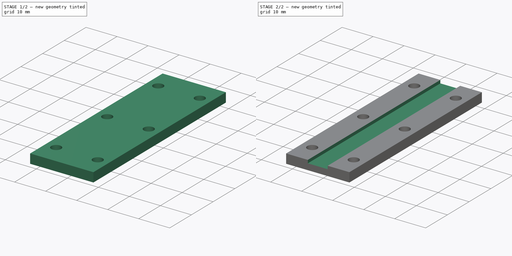
[diagram: build sequence overview — one tinted view per stage of 2, left to right]
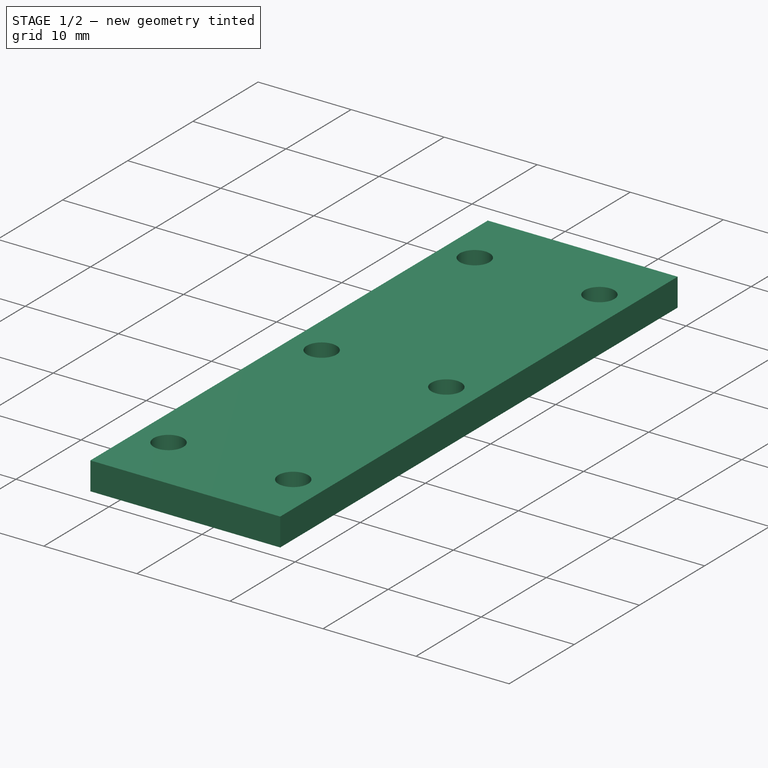
[diagram: stage 1 of 2 — iso view after this stage's code; geometry added in this stage tinted green]
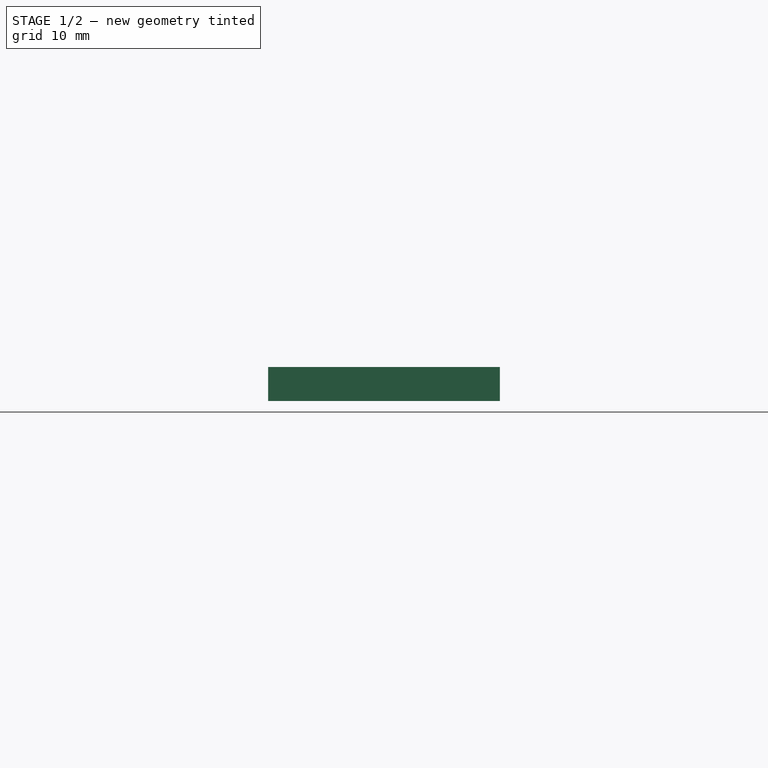
[diagram: stage 1 of 2 — front view after this stage's code; geometry added in this stage tinted green]
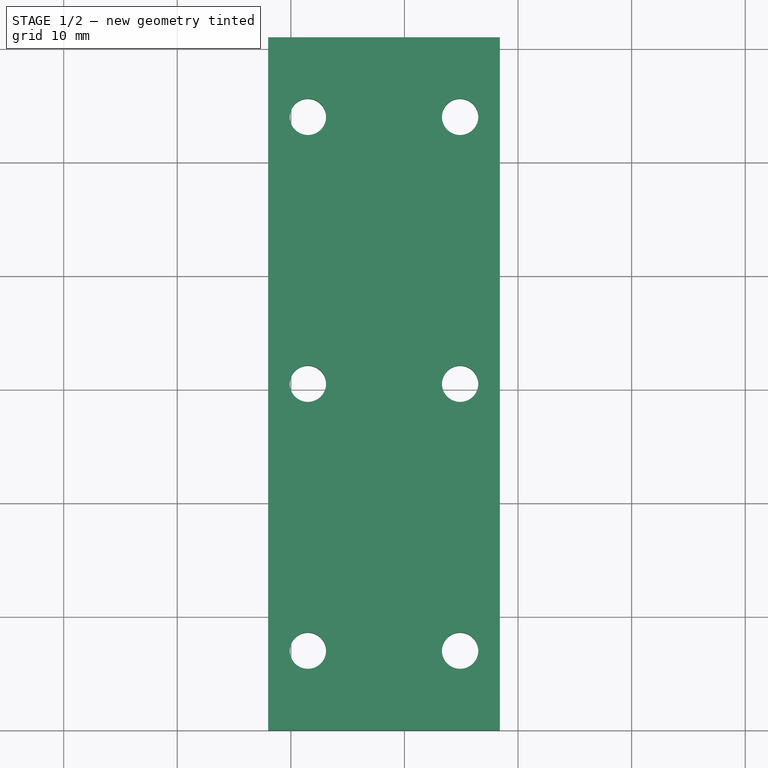
[diagram: stage 1 of 2 — top view after this stage's code; geometry added in this stage tinted green]
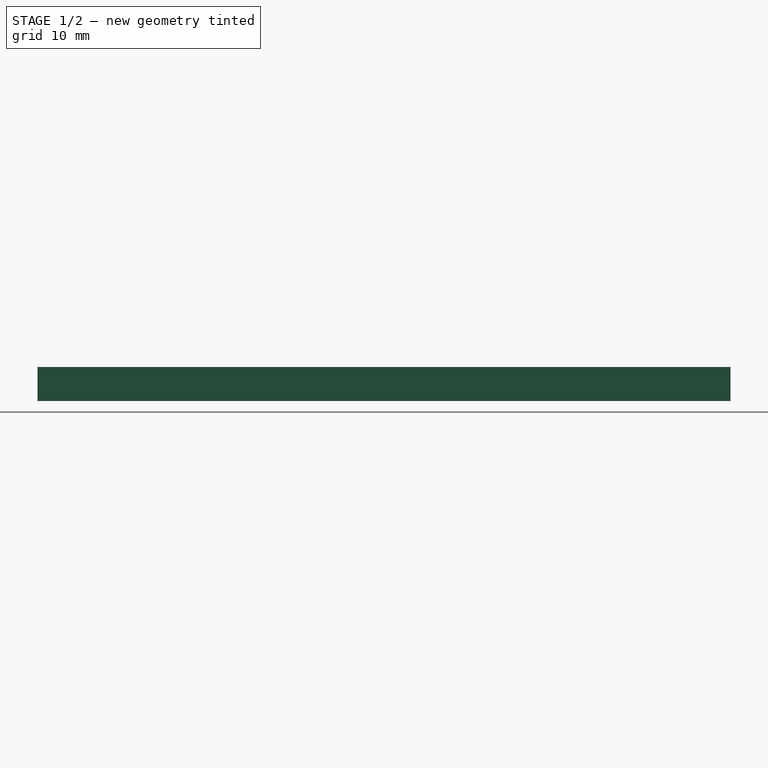
[diagram: stage 1 of 2 — right view after this stage's code; geometry added in this stage tinted green]
FCSTD DOCUMENT  (FreeCAD 0.19R24276 (Git))
Label: Gt2_belt_holder_for_glass_movement_cover
License: All rights reserved
LicenseURL: http://en.wikipedia.org/wiki/All_rights_reserved
objects: Sketcher::SketchObject×2, PartDesign::Pad×1, PartDesign::Pocket×1, PartDesign::Body×1
note: 7 computed .brp shape members not serialized (recipe doc carries the construction recipe); baked Part::Feature solids carry a one-line shape summary decoded from their .brp

FEATURE [Sketcher::SketchObject] Sketch
  FullyConstrained = false
  MapMode = 5
  Support = -> [XY_Plane]
  sketch-geometry (39):
    g0: LineSegment StartX=0 StartY=0 StartZ=0 EndX=15 EndY=0 EndZ=0
    g1: LineSegment StartX=15 StartY=0 StartZ=0 EndX=15 EndY=60 EndZ=0
    g2: LineSegment StartX=15 StartY=60 StartZ=0 EndX=0 EndY=60 EndZ=0
    g3: LineSegment StartX=0 StartY=60 StartZ=0 EndX=0 EndY=0 EndZ=0
    g4: LineSegment StartX=10 StartY=0 StartZ=0 EndX=10 EndY=60 EndZ=0
    g5: Circle CenterX=10 CenterY=46 CenterZ=0 NormalX=0 NormalY=0 NormalZ=1 AngleXU=0 Radius=2.5
    g6: Circle CenterX=10 CenterY=26 CenterZ=0 NormalX=0 NormalY=0 NormalZ=1 AngleXU=0 Radius=2.5
    g7: Circle CenterX=10 CenterY=6 CenterZ=0 NormalX=0 NormalY=0 NormalZ=1 AngleXU=0 Radius=2.5
    g8: LineSegment StartX=0 StartY=0 StartZ=0 EndX=38.4 EndY=0 EndZ=0
    g9: LineSegment StartX=38.4 StartY=0 StartZ=0 EndX=38.4 EndY=61 EndZ=0
    g10: LineSegment StartX=38.4 StartY=61 StartZ=0 EndX=0 EndY=61 EndZ=0
    g11: LineSegment StartX=0 StartY=61 StartZ=0 EndX=0 EndY=0 EndZ=0
    g12: LineSegment StartX=25 StartY=61 StartZ=0 EndX=25 EndY=0 EndZ=0
    g13: LineSegment StartX=31.4 StartY=61 StartZ=0 EndX=31.4 EndY=0 EndZ=0
    g14: LineSegment StartX=21.5 StartY=54 StartZ=0 EndX=34.9 EndY=54 EndZ=0
    g15: LineSegment StartX=53.2266 StartY=54 StartZ=0 EndX=53.2266 EndY=7 EndZ=0
    g16: LineSegment StartX=53.2266 StartY=7 StartZ=0 EndX=38.4 EndY=7 EndZ=0
    g17: LineSegment StartX=18 StartY=0 StartZ=0 EndX=18 EndY=61 EndZ=0
    g18: LineSegment StartX=19.0739 StartY=30.5 StartZ=0 EndX=38.4 EndY=30.5 EndZ=0
    g19: LineSegment StartX=16.2806 StartY=30.5 StartZ=0 EndX=53.2266 EndY=30.5 EndZ=0
    g20: LineSegment StartX=38.4 StartY=54 StartZ=0 EndX=53.2266 EndY=54 EndZ=0
    g21: LineSegment StartX=34.9 StartY=7 StartZ=0 EndX=21.5 EndY=7 EndZ=0
    g22: Circle CenterX=21.5 CenterY=54 CenterZ=0 NormalX=0 NormalY=0 NormalZ=1 AngleXU=0 Radius=1.6
    g23: Circle CenterX=34.9 CenterY=54 CenterZ=0 NormalX=0 NormalY=0 NormalZ=1 AngleXU=0 Radius=0
    g24: Circle CenterX=21.5 CenterY=7 CenterZ=0 NormalX=0 NormalY=0 NormalZ=1 AngleXU=0 Radius=1.6
    g25: Circle CenterX=34.9 CenterY=7 CenterZ=0 NormalX=0 NormalY=0 NormalZ=1 AngleXU=0 Radius=1.6
    g26: Circle CenterX=34.9 CenterY=54 CenterZ=0 NormalX=0 NormalY=0 NormalZ=1 AngleXU=0 Radius=1.6
    g27: Circle CenterX=34.9 CenterY=30.5 CenterZ=0 NormalX=0 NormalY=0 NormalZ=1 AngleXU=0 Radius=1.6
    g28: LineSegment StartX=34.9 StartY=7 StartZ=0 EndX=34.9 EndY=30.5 EndZ=0
    g29: LineSegment StartX=21.5 StartY=7 StartZ=0 EndX=21.5 EndY=30.5 EndZ=0
    g30: Circle CenterX=21.5 CenterY=30.5 CenterZ=0 NormalX=0 NormalY=0 NormalZ=1 AngleXU=0 Radius=1.6
    g31: LineSegment StartX=0 StartY=0 StartZ=0 EndX=38.4 EndY=0 EndZ=0
    g32: LineSegment StartX=38.4 StartY=0 StartZ=0 EndX=38.4 EndY=61 EndZ=0
    g33: LineSegment StartX=38.4 StartY=61 StartZ=0 EndX=0 EndY=61 EndZ=0
    g34: LineSegment StartX=0 StartY=61 StartZ=0 EndX=0 EndY=0 EndZ=0
    g35: LineSegment StartX=10 StartY=46 StartZ=0 EndX=-18.6831 EndY=46 EndZ=0
    g36: LineSegment StartX=15.571 StartY=69.4699 StartZ=0 EndX=15.571 EndY=-7.97656 EndZ=0
    g37: LineSegment StartX=18 StartY=0 StartZ=0 EndX=38.4 EndY=0 EndZ=0
    g38: LineSegment StartX=18 StartY=61 StartZ=0 EndX=38.4 EndY=61 EndZ=0
  constraints (98):
    c: Coincident(g0,g1)
    c: Coincident(g1,g2)
    c: Coincident(g2,g3)
    c: Coincident(g3,g0)
    c: Horizontal(g0)
    c: Horizontal(g2)
    c: Vertical(g1)
    c: Vertical(g3)
    c: Coincident(g0,g-1)
    c: Vertical(g4)
    c: DistanceX(g0,g0) = 15
    c: PointOnObject(g4,g0)
    c: PointOnObject(g4,g2)
    c: DistanceX(g2,g4) = 10
    c: PointOnObject(g5,g4)
    c: PointOnObject(g6,g4)
    c: PointOnObject(g7,g4)
    c: Diameter(g6) = 5
    c: Equal(g6,g7)
    c: Equal(g6,g5)
    c: DistanceY(g0,g7) = 6
    c: DistanceY(g7,g6) = 20
    c: DistanceY(g6,g5) = 20
    c: DistanceY(g-1,g2) = 60
    c: Coincident(g8,g9)
    c: Coincident(g9,g10)
    c: Coincident(g10,g11)
    c: Coincident(g11,g8)
    c: Horizontal(g8)
    c: Horizontal(g10)
    c: Vertical(g9)
    c: Vertical(g11)
    c: Coincident(g8,g-1)
    c: Vertical(g12)
    c: Vertical(g13)
    c: PointOnObject(g12,g8)
    c: PointOnObject(g13,g8)
    c: PointOnObject(g12,g10)
    c: PointOnObject(g13,g10)
    c: DistanceX(g12,g13) = 6.4
    c: DistanceX(g0,g12) = 10
    c: DistanceX(g13,g8) = 7
    c: Coincident(g20,g15)
    c: Coincident(g15,g16)
    c: Horizontal(g14)
    c: Horizontal(g16)
    c: Vertical(g15)
    c: Vertical(g17)
    c: Horizontal(g18)
    c: Symmetric(g9,g8,g18)
    c: Horizontal(g19)
    c: Symmetric(g20,g15,g19)
    c: DistanceY(g18,g19) = 0
    c: DistanceY(g8,g15) = 7
    c: PointOnObject(g20,g9)
    c: Tangent(g14,g20)
    c: PointOnObject(g16,g9)
    c: Tangent(g16,g21)
    c: DistanceY(g15,g15) = 47
    c: Coincident(g22,g14)
    c: Coincident(g23,g14)
    c: Coincident(g24,g21)
    c: Coincident(g25,g21)
    c: Coincident(g26,g14)
    c: Coincident(g28,g21)
    c: Vertical(g28)
    c: PointOnObject(g28,g18)
    c: Coincident(g28,g27)
    c: Coincident(g29,g21)
    c: Vertical(g29)
    c: PointOnObject(g29,g18)
    c: Coincident(g30,g29)
    c: Radius(g26) = 1.6
    c: Equal(g26,g30)
    c: Equal(g26,g22)
    c: Equal(g26,g27)
    c: Equal(g26,g25)
    c: Equal(g26,g24)
    c: Coincident(g31,g-1)
    c: Coincident(g32,g31)
    c: Coincident(g32,g9)
    c: Coincident(g33,g32)
    c: Coincident(g33,g10)
    c: Coincident(g34,g33)
    c: Coincident(g34,g31)
    c: Coincident(g35,g5)
    c: Horizontal(g35)
    c: Vertical(g36)
    c: DistanceX(g13,g25) = 3.5
    c: DistanceX(g24,g12) = 3.5
    c: DistanceX(g17,g12) = 7
    c: PointOnObject(g17,g31)
    c: PointOnObject(g17,g33)
    c: Coincident(g37,g17)
    c: Coincident(g37,g32)
    c: Horizontal(g37)
    c: Coincident(g38,g17)
    c: Coincident(g38,g32)
FEATURE [PartDesign::Pad] Pad
  Direction = (1,1,1)
  Length = 3
  Length2 = 100
  Profile = -> Sketch
  Type = 0
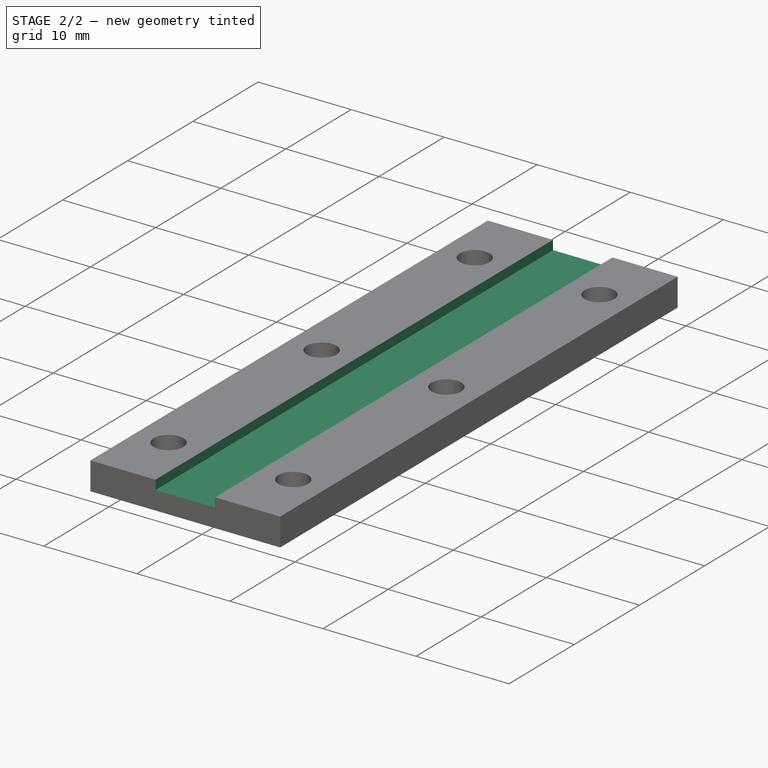
[diagram: stage 2 of 2 — iso view after this stage's code; geometry added in this stage tinted green]
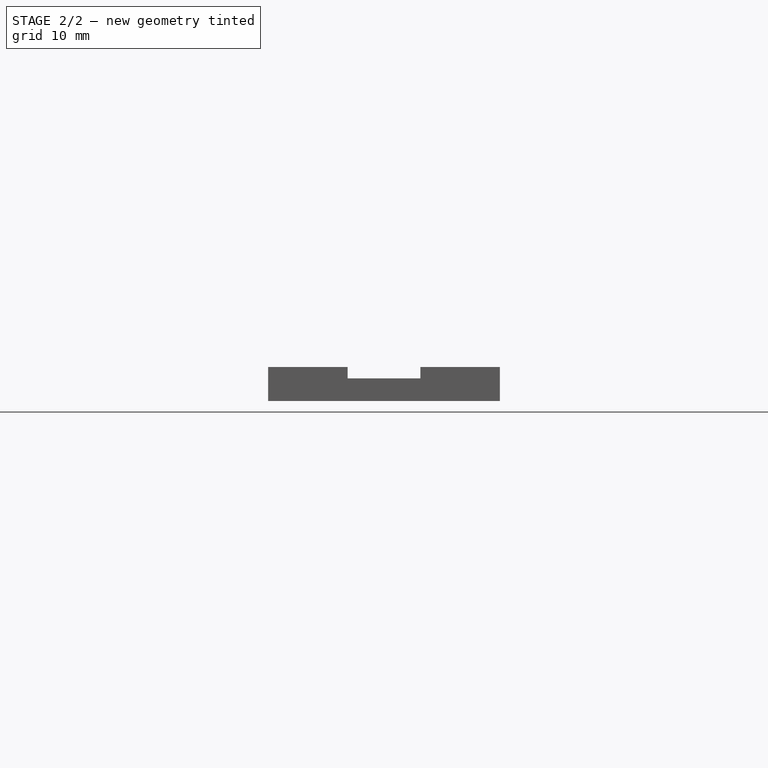
[diagram: stage 2 of 2 — front view after this stage's code; geometry added in this stage tinted green]
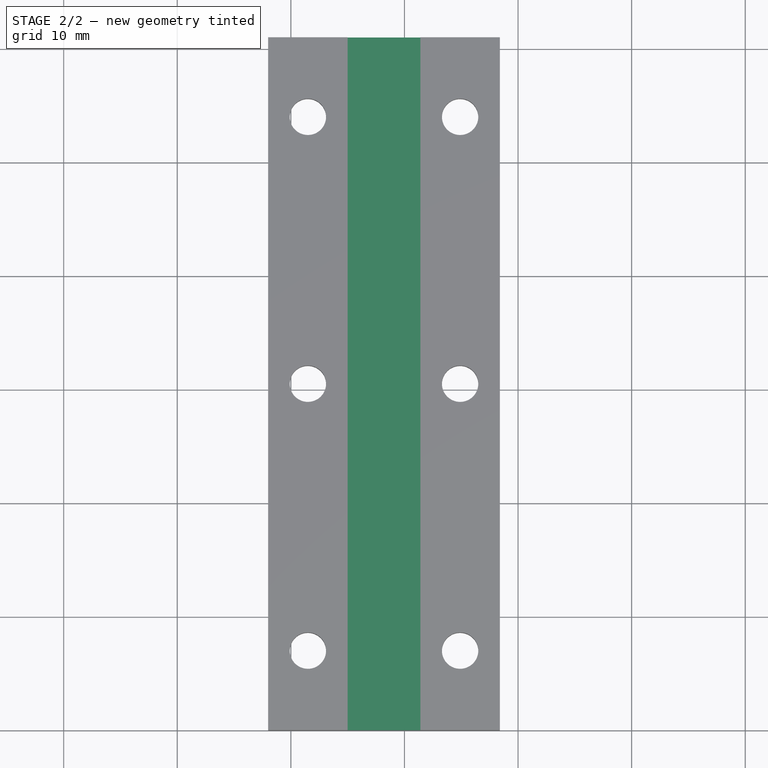
[diagram: stage 2 of 2 — top view after this stage's code; geometry added in this stage tinted green]
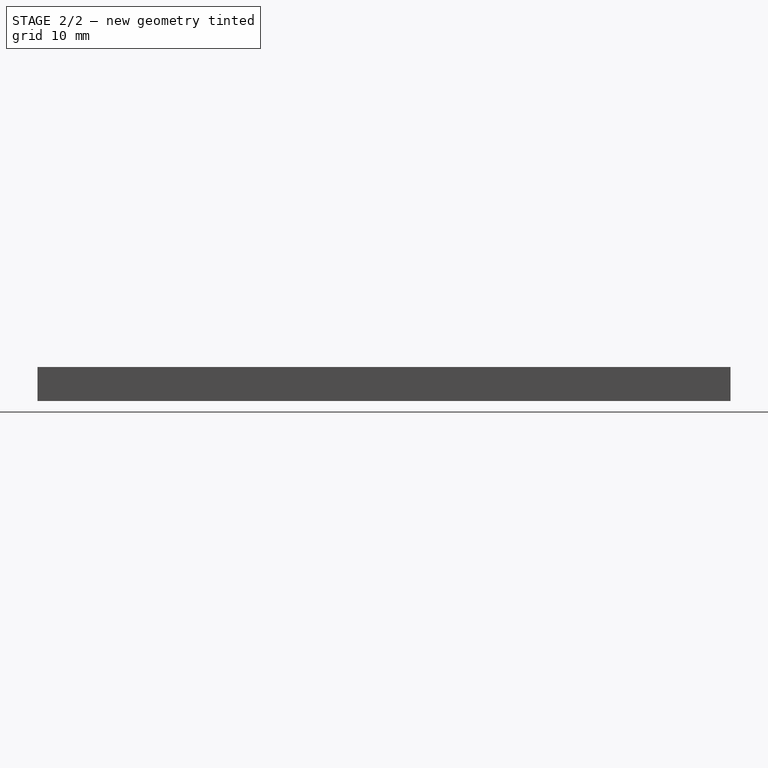
[diagram: stage 2 of 2 — right view after this stage's code; geometry added in this stage tinted green]
FEATURE [Sketcher::SketchObject] Sketch001
  FullyConstrained = false
  MapMode = 5
  Placement = pos=(0,0,3) rot=(0,0,1;0rad)
  Support = -> [Pad]
  sketch-geometry (4):
    g0: LineSegment StartX=25 StartY=79.5274 StartZ=0 EndX=31.4 EndY=79.5274 EndZ=0
    g1: LineSegment StartX=31.4 StartY=79.5274 StartZ=0 EndX=31.4 EndY=-9.79713 EndZ=0
    g2: LineSegment StartX=31.4 StartY=-9.79713 StartZ=0 EndX=25 EndY=-9.79713 EndZ=0
    g3: LineSegment StartX=25 StartY=-9.79713 StartZ=0 EndX=25 EndY=79.5274 EndZ=0
  constraints (10):
    c: Coincident(g0,g1)
    c: Coincident(g1,g2)
    c: Coincident(g2,g3)
    c: Coincident(g3,g0)
    c: Horizontal(g0)
    c: Horizontal(g2)
    c: Vertical(g1)
    c: Vertical(g3)
    c: DistanceX(g-1,g2) = 25
    c: DistanceX(g2,g2) = 6.4
FEATURE [PartDesign::Pocket] Pocket
  BaseFeature = -> Pad
  Length = 1
  Length2 = 100
  Profile = -> Sketch001
  Type = 0
FEATURE [PartDesign::Body] Body
  Group = -> [Sketch,Pad,Sketch001,Pocket]
  Origin = -> Origin
  Tip = -> Pocket
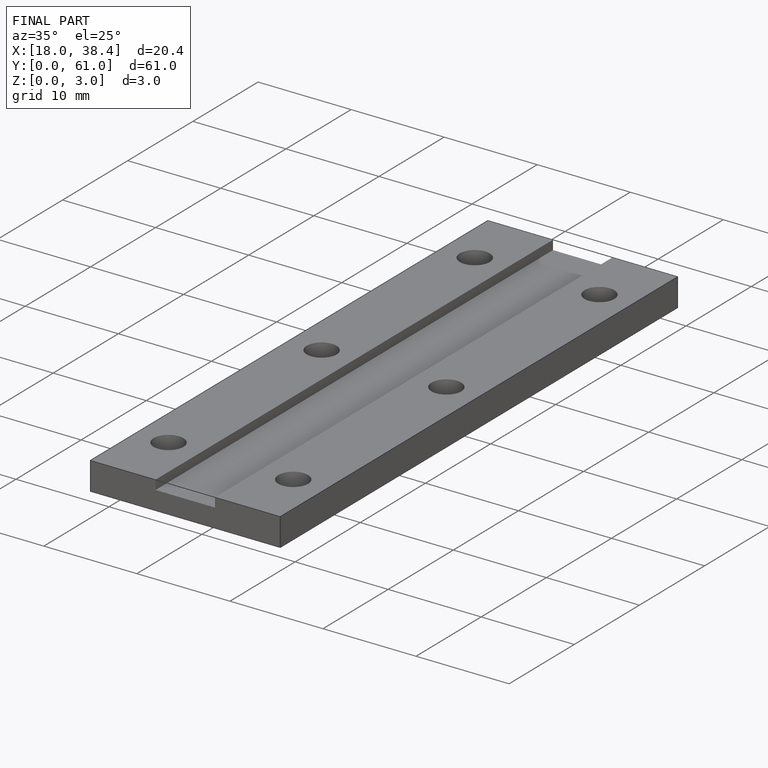
[diagram: finished part — iso view with bounding-box wireframe]
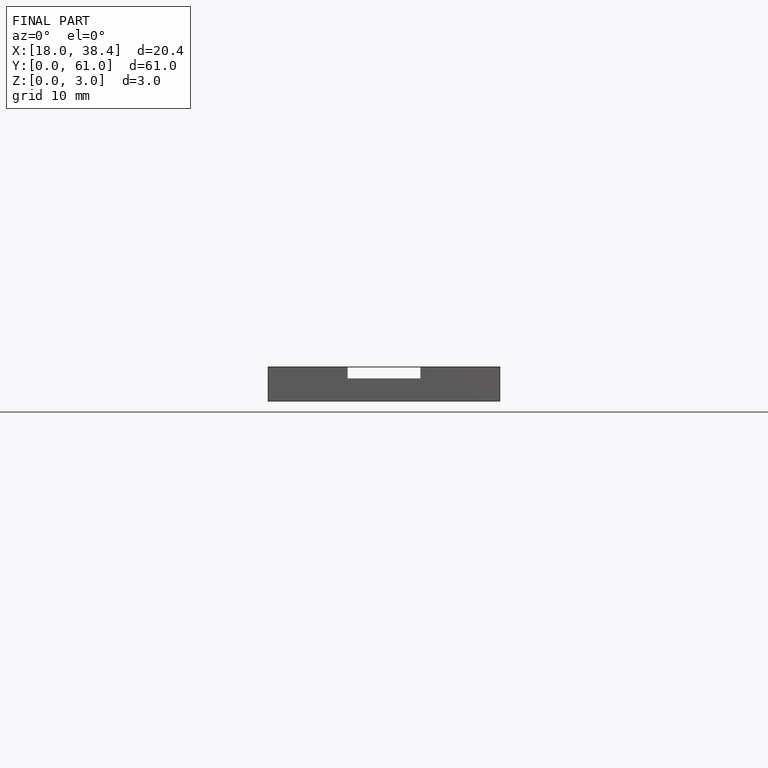
[diagram: finished part — front view with bounding-box wireframe]
